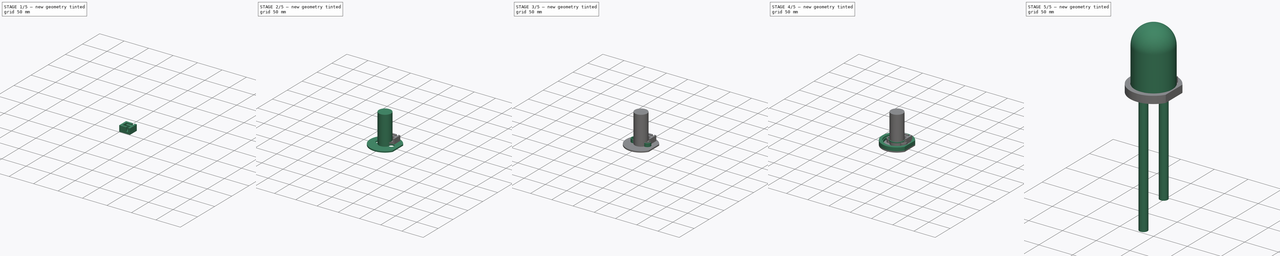
[diagram: build sequence overview — one tinted view per stage of 5, left to right]
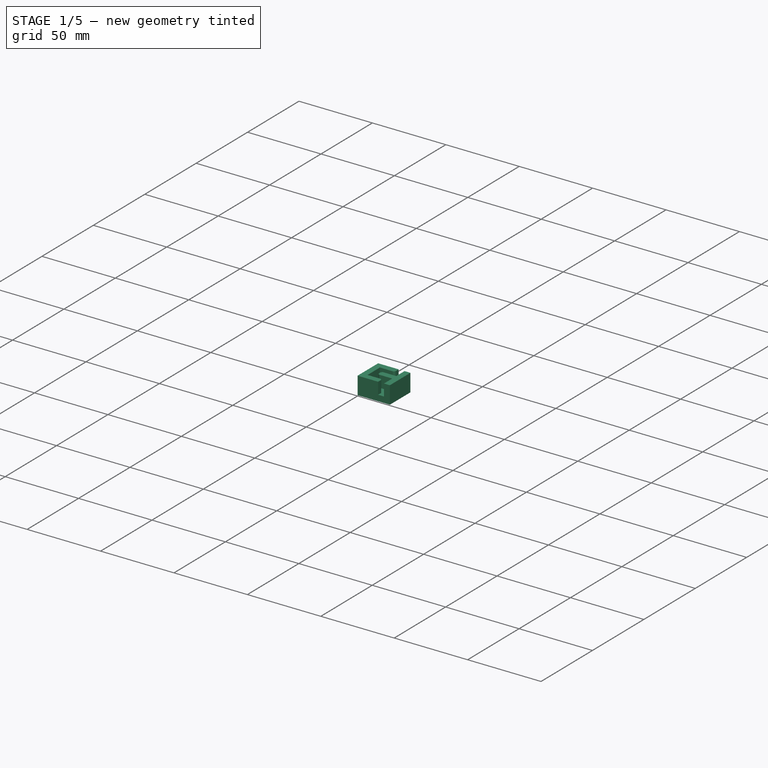
[diagram: stage 1 of 5 — iso view after this stage's code; geometry added in this stage tinted green]
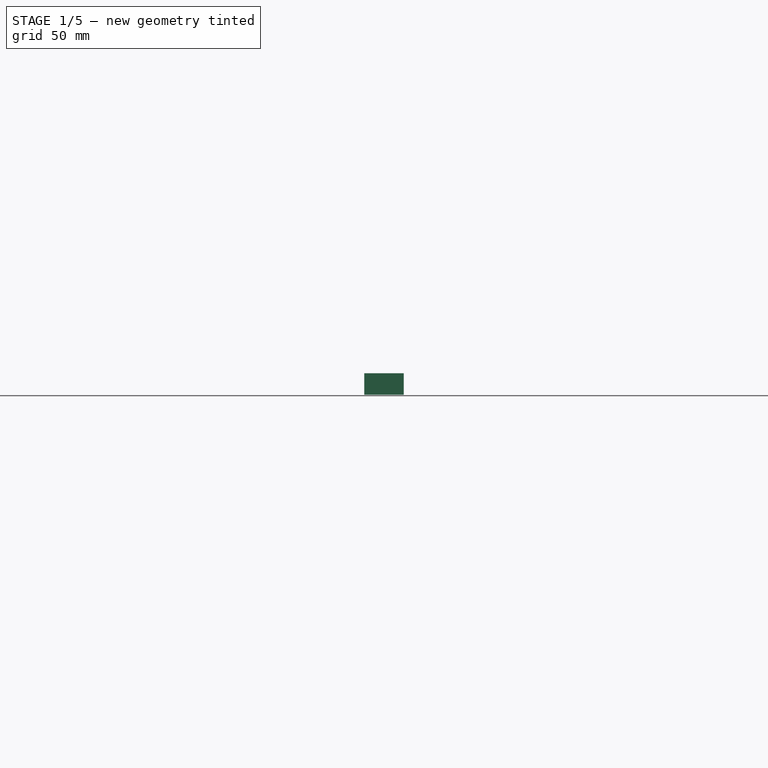
[diagram: stage 1 of 5 — front view after this stage's code; geometry added in this stage tinted green]
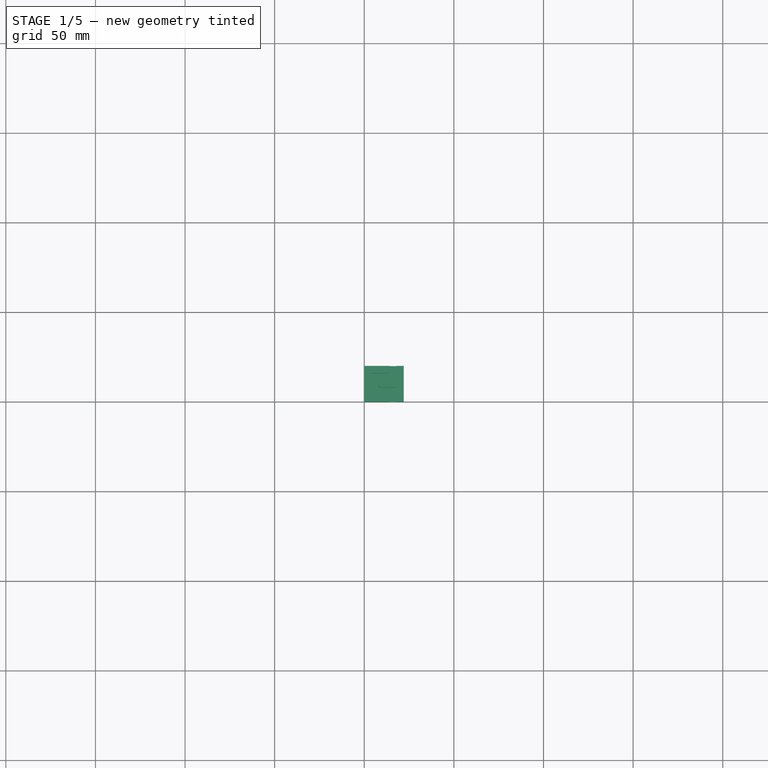
[diagram: stage 1 of 5 — top view after this stage's code; geometry added in this stage tinted green]
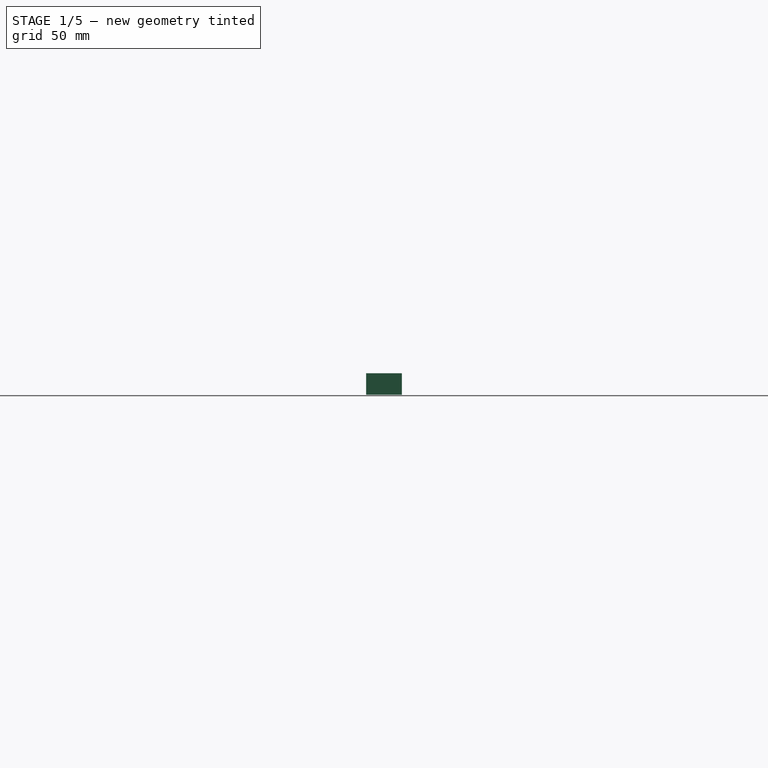
[diagram: stage 1 of 5 — right view after this stage's code; geometry added in this stage tinted green]
FCSTD DOCUMENT  (FreeCAD 0.21R33771 (Git))
Label: Komplett
License: All rights reserved
LicenseURL: http://en.wikipedia.org/wiki/All_rights_reserved
objects: Sketcher::SketchObject×13, PartDesign::Pad×8, PartDesign::Body×4, PartDesign::Revolution×3, Part::FeaturePython×2, PartDesign::Pocket×2
note: 45 computed .brp shape members not serialized (recipe doc carries the construction recipe); baked Part::Feature solids carry a one-line shape summary decoded from their .brp

FEATURE [PartDesign::Body] Body018  label="LED Halter"
  Group = -> [Sketch018,Revolution003,Sketch019,Pad015,Sketch020,Pocket,Sketch021,Pocket001,Sketch022,Pad016,Sketch023,Pad017,Sketch024,Pad018,Sketch025,Pad019]
  Origin = -> Origin019
  Tip = -> Pad019
FEATURE [Sketcher::SketchObject] Sketch026
  FullyConstrained = true
  MapMode = 5
  Support = -> [XY_Plane020]
  sketch-geometry (10):
    g0: LineSegment StartX=0 StartY=0 StartZ=0 EndX=14 EndY=0 EndZ=0
    g1: LineSegment StartX=14 StartY=0 StartZ=0 EndX=14 EndY=2.5 EndZ=0
    g2: LineSegment StartX=12.5 StartY=4 StartZ=0 EndX=4 EndY=4 EndZ=0
    g3: LineSegment StartX=4 StartY=4 StartZ=0 EndX=4 EndY=16 EndZ=0
    g4: LineSegment StartX=4 StartY=16 StartZ=0 EndX=12.5 EndY=16 EndZ=0
    g5: LineSegment StartX=14 StartY=17.5 StartZ=0 EndX=14 EndY=20 EndZ=0
    g6: LineSegment StartX=14 StartY=20 StartZ=0 EndX=0 EndY=20 EndZ=0
    g7: LineSegment StartX=0 StartY=20 StartZ=0 EndX=0 EndY=0 EndZ=0
    g8: ArcOfCircle CenterX=12.5 CenterY=2.5 CenterZ=0 NormalX=0 NormalY=0 NormalZ=1 AngleXU=0 Radius=1.5 StartAngle=0 EndAngle=1.5708
    g9: ArcOfCircle CenterX=12.5 CenterY=17.5 CenterZ=0 NormalX=0 NormalY=0 NormalZ=1 AngleXU=0 Radius=1.5 StartAngle=4.71239 EndAngle=6.28319
  constraints (27):
    c: Coincident(g-1,g0)
    c: PointOnObject(g0,g-1)
    c: Coincident(g0,g1)
    c: Vertical(g1)
    c: Horizontal(g2)
    c: Coincident(g2,g3)
    c: Vertical(g3)
    c: Coincident(g3,g4)
    c: Horizontal(g4)
    c: Vertical(g5)
    c: Coincident(g5,g6)
    c: PointOnObject(g6,g-2)
    c: Horizontal(g6)
    c: Coincident(g6,g7)
    c: Coincident(g7,g0)
    c: DistanceX(g2) = 4
    c: DistanceY(g3,g3) = 12
    c: Tangent(g1,g8) = -1.5708
    c: Tangent(g2,g8) = -1.5708
    c: Tangent(g4,g9) = -1.5708
    c: Tangent(g5,g9) = -1.5708
    c: DistanceY(g4,g5) = 4
    c: DistanceY(g0,g2) = 4
    c: Vertical(g1,g5)
    c: DistanceX(g6,g6) = 14
    c: Vertical(g4,g2)
    c: Radius(g9) = 1.5
FEATURE [PartDesign::Pad] Pad
  Direction = (0,0,1)
  Length = 8
  Length2 = 10
  Profile = -> Sketch026
  ReferenceAxis = -> Sketch026 [N_Axis]
  Type = 0
FEATURE [Sketcher::SketchObject] Sketch027
  FullyConstrained = true
  MapMode = 5
  Support = -> [XY_Plane020]
  sketch-geometry (10):
    g0: LineSegment StartX=18 StartY=0 StartZ=0 EndX=18 EndY=8 EndZ=0
    g1: LineSegment StartX=18 StartY=8 StartZ=0 EndX=9.5 EndY=8 EndZ=0
    g2: LineSegment StartX=8 StartY=9.5 StartZ=0 EndX=8 EndY=10.5 EndZ=0
    g3: LineSegment StartX=9.5 StartY=12 StartZ=0 EndX=18 EndY=12 EndZ=0
    g4: LineSegment StartX=18 StartY=12 StartZ=0 EndX=18 EndY=20 EndZ=0
    g5: LineSegment StartX=18 StartY=20 StartZ=0 EndX=22 EndY=20 EndZ=0
    g6: LineSegment StartX=22 StartY=20 StartZ=0 EndX=22 EndY=0 EndZ=0
    g7: LineSegment StartX=22 StartY=0 StartZ=0 EndX=18 EndY=0 EndZ=0
    g8: ArcOfCircle CenterX=9.5 CenterY=9.5 CenterZ=0 NormalX=0 NormalY=0 NormalZ=1 AngleXU=0 Radius=1.5 StartAngle=3.14159 EndAngle=4.71239
    g9: ArcOfCircle CenterX=9.5 CenterY=10.5 CenterZ=0 NormalX=0 NormalY=0 NormalZ=1 AngleXU=0 Radius=1.5 StartAngle=1.5708 EndAngle=3.14159
  constraints (28):
    c: Vertical(g0)
    c: Coincident(g0,g1)
    c: Horizontal(g1)
    c: Vertical(g2)
    c: Coincident(g3,g4)
    c: Vertical(g4)
    c: Coincident(g4,g5)
    c: Horizontal(g5)
    c: Coincident(g5,g6)
    c: PointOnObject(g6,g-1)
    c: Vertical(g6)
    c: Coincident(g6,g7)
    c: Coincident(g7,g0)
    c: Horizontal(g7)
    c: Horizontal(g3)
    c: DistanceY(g0,g0) = 8
    c: DistanceY(g4,g4) = 8
    c: DistanceY(g0,g3) = 4
    c: DistanceX(g7,g7) = 4
    c: Vertical(g0,g3)
    c: DistanceX(g0) = 18
    c: Tangent(g1,g8) = 1.5708
    c: Tangent(g2,g8) = 1.5708
    c: Tangent(g2,g9) = 1.5708
    c: Tangent(g3,g9) = 1.5708
    c: Vertical(g1,g3)
    c: DistanceX(g2,g0) = 10
    c: Radius(g9) = 1.5
FEATURE [Sketcher::SketchObject] Sketch028
  FullyConstrained = true
  MapMode = 5
  Support = -> [XY_Plane020]
  sketch-geometry (4):
    g0: LineSegment StartX=0 StartY=0 StartZ=0 EndX=22 EndY=0 EndZ=0
    g1: LineSegment StartX=22 StartY=0 StartZ=0 EndX=22 EndY=20 EndZ=0
    g2: LineSegment StartX=22 StartY=20 StartZ=0 EndX=0 EndY=20 EndZ=0
    g3: LineSegment StartX=0 StartY=20 StartZ=0 EndX=0 EndY=0 EndZ=0
  constraints (11):
    c: Coincident(g0,g1)
    c: Coincident(g1,g2)
    c: Coincident(g2,g3)
    c: Coincident(g3,g0)
    c: Horizontal(g0)
    c: Horizontal(g2)
    c: Vertical(g1)
    c: Vertical(g3)
    c: Coincident(g0,g-1)
    c: DistanceX(g1) = 22
    c: DistanceY(g1) = 20
FEATURE [PartDesign::Pad] Pad020
  BaseFeature = -> Pad
  Direction = (0,0,-1)
  Length = 4
  Length2 = 10
  Profile = -> Sketch028
  ReferenceAxis = -> Sketch028 [N_Axis]
  Type = 0
  UseCustomVector = true
FEATURE [PartDesign::Pad] Pad021
  BaseFeature = -> Pad020
  Direction = (0,0,1)
  Length = 8
  Length2 = 10
  Profile = -> Sketch027
  ReferenceAxis = -> Sketch027 [N_Axis]
  Type = 0
FEATURE [PartDesign::Body] Body019  label="Zugendlastung"
  Group = -> [Sketch026,Pad,Sketch027,Sketch028,Pad020,Pad021]
  Origin = -> Origin020
  Tip = -> Pad021
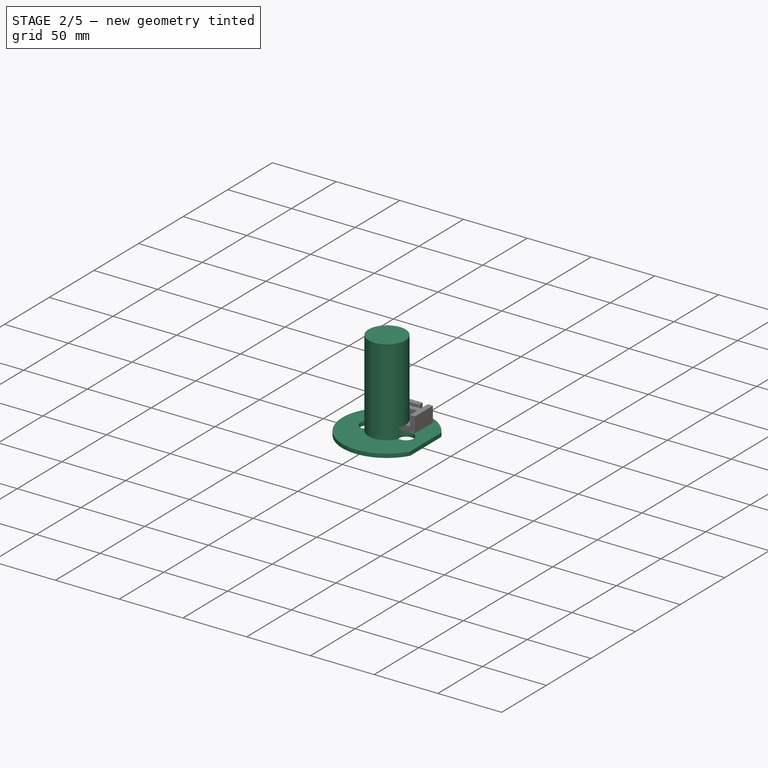
[diagram: stage 2 of 5 — iso view after this stage's code; geometry added in this stage tinted green]
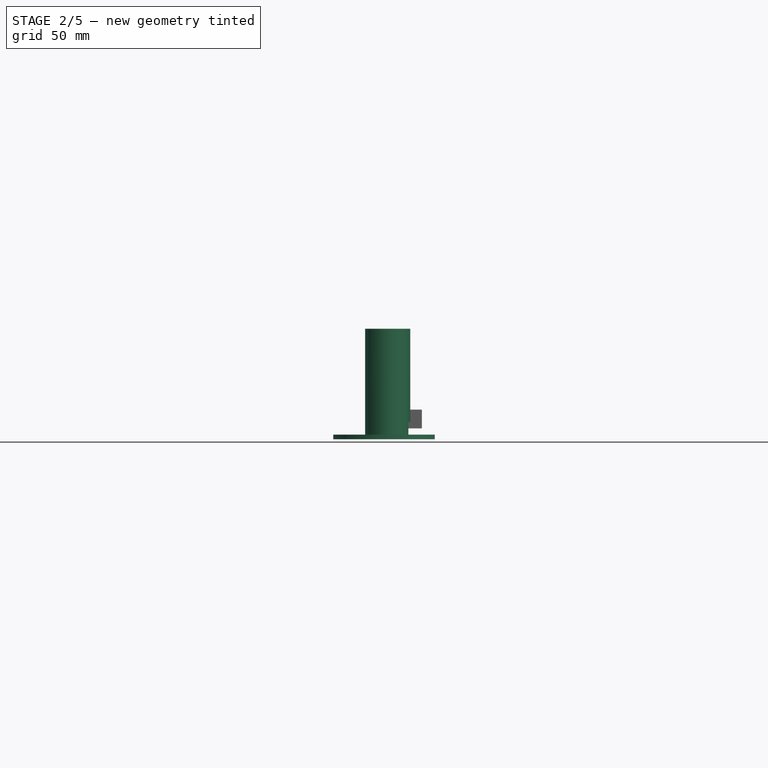
[diagram: stage 2 of 5 — front view after this stage's code; geometry added in this stage tinted green]
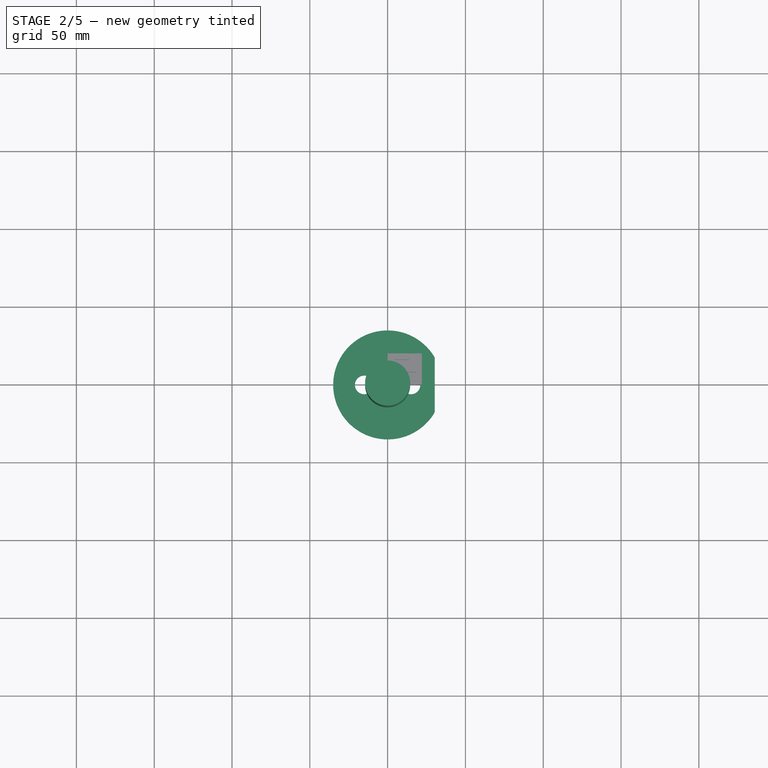
[diagram: stage 2 of 5 — top view after this stage's code; geometry added in this stage tinted green]
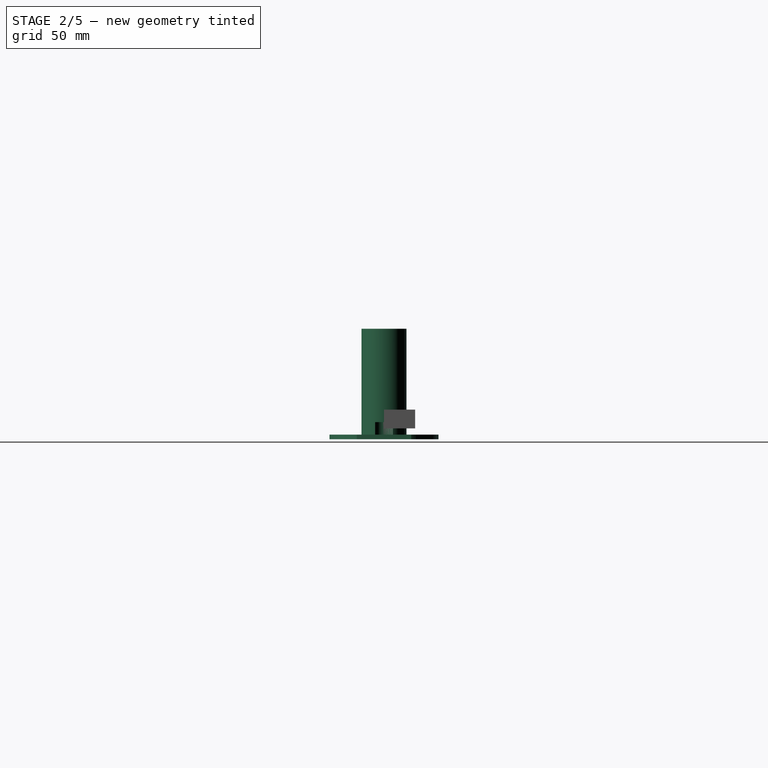
[diagram: stage 2 of 5 — right view after this stage's code; geometry added in this stage tinted green]
FEATURE [PartDesign::Body] Body017  label="Anschluss Versteifung"
  Group = -> [Sketch017,Revolution002]
  Origin = -> Origin018
  Placement = pos=(-15,-2.3e-14,-185) rot=(1,0,0;3.14159rad)
  Tip = -> Revolution002
FEATURE [Sketcher::SketchObject] Sketch018
  FullyConstrained = true
  MapMode = 5
  Placement = pos=(0,0,0) rot=(1,0,0;1.5708rad)
  Support = -> [XZ_Plane019]
  sketch-geometry (4):
    g0: LineSegment StartX=0 StartY=60 StartZ=0 EndX=0 EndY=-11 EndZ=0
    g1: LineSegment StartX=0 StartY=-11 StartZ=0 EndX=14.5 EndY=-11 EndZ=0
    g2: LineSegment StartX=14.5 StartY=-11 StartZ=0 EndX=14.5 EndY=60 EndZ=0
    g3: LineSegment StartX=14.5 StartY=60 StartZ=0 EndX=0 EndY=60 EndZ=0
  constraints (12):
    c: PointOnObject(g0,g-2)
    c: Vertical(g0)
    c: Coincident(g0,g1)
    c: Coincident(g1,g2)
    c: Vertical(g2)
    c: Coincident(g2,g3)
    c: Coincident(g3,g0)
    c: Horizontal(g3)
    c: Distance(g3) = 14.5
    c: DistanceY(g2) = 60
    c: DistanceY(g1) = -11
    c: Horizontal(g1)
FEATURE [PartDesign::Revolution] Revolution003
  Angle = 360
  Axis = (0,-2e-16,1)
  Base = (0,0,0)
  Placement = pos=(0,0,0) rot=(1,0,0;1.5708rad)
  Profile = -> Sketch018
  ReferenceAxis = -> Sketch018 [V_Axis]
  Reversed = true
FEATURE [Sketcher::SketchObject] Sketch019
  AttachmentOffset = pos=(0,0,-11) rot=(0,0,1;0rad)
  FullyConstrained = true
  MapMode = 5
  Placement = pos=(0,0,-11) rot=(0,0,1;0rad)
  Support = -> [XY_Plane019]
  sketch-geometry (4):
    g0: ArcOfCircle CenterX=0 CenterY=0 CenterZ=0 NormalX=0 NormalY=0 NormalZ=1 AngleXU=0 Radius=35 StartAngle=0.523599 EndAngle=5.75959
    g1: Circle CenterX=15 CenterY=0 CenterZ=0 NormalX=0 NormalY=0 NormalZ=1 AngleXU=0 Radius=6
    g2: Circle CenterX=-15 CenterY=0 CenterZ=0 NormalX=0 NormalY=0 NormalZ=1 AngleXU=0 Radius=6
    g3: LineSegment StartX=30.3109 StartY=17.5 StartZ=0 EndX=30.3109 EndY=-17.5 EndZ=0
  constraints (12):
    c: Coincident(g0,g-1)
    c: PointOnObject(g1,g-1)
    c: PointOnObject(g2,g-1)
    c: Coincident(g3,g0)
    c: Coincident(g3,g0)
    c: Vertical(g3)
    c: Diameter(g0) = 70
    c: Distance(g3) = 35
    c: Equal(g1,g2)
    c: Diameter(g1) = 12
    c: DistanceX(g1) = 15
    c: DistanceX(g2) = -15
FEATURE [PartDesign::Pad] Pad015
  BaseFeature = -> Revolution003
  Direction = (0,0,1)
  Length = 3
  Length2 = 10
  Placement = pos=(0,0,0) rot=(1,0,0;1.5708rad)
  Profile = -> Sketch019
  ReferenceAxis = -> Sketch019 [N_Axis]
  Type = 0
FEATURE [Sketcher::SketchObject] Sketch020
  AttachmentOffset = pos=(0,0,-11) rot=(0,0,1;0rad)
  FullyConstrained = true
  MapMode = 5
  Placement = pos=(0,0,-11) rot=(0,0,1;0rad)
  Support = -> [XY_Plane019]
  sketch-geometry (1):
    g0: Circle CenterX=15 CenterY=0 CenterZ=0 NormalX=0 NormalY=0 NormalZ=1 AngleXU=0 Radius=6
  constraints (3):
    c: PointOnObject(g0,g-1)
    c: Diameter(g0) = 12
    c: DistanceX(g0) = 15
FEATURE [PartDesign::Pocket] Pocket
  BaseFeature = -> Pad015
  Direction = (0,0,1)
  Length = 11
  Length2 = 5
  Placement = pos=(0,0,0) rot=(1,0,0;1.5708rad)
  Profile = -> Sketch020
  ReferenceAxis = -> Sketch020 [N_Axis]
  Type = 0
  UseCustomVector = true
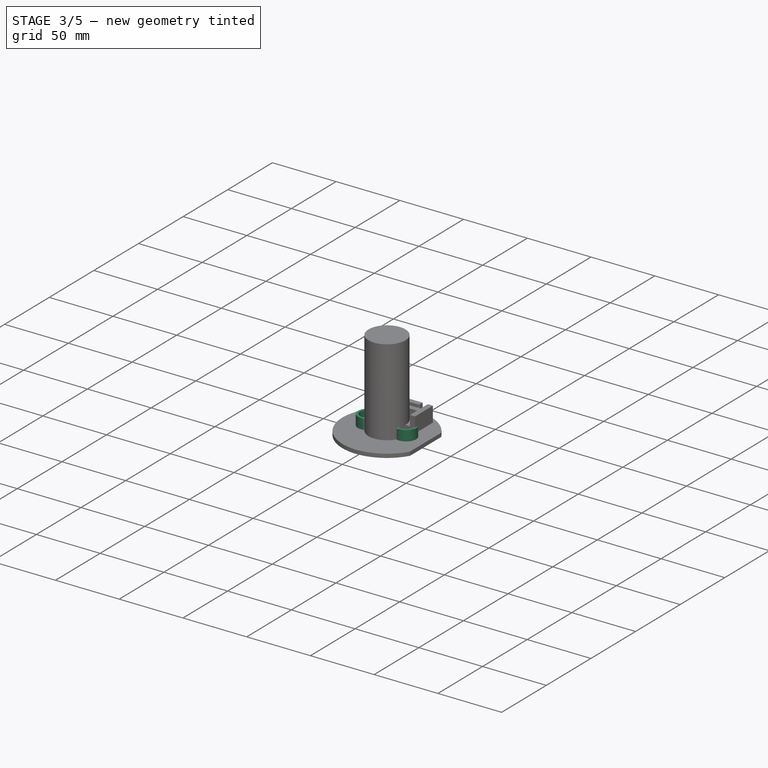
[diagram: stage 3 of 5 — iso view after this stage's code; geometry added in this stage tinted green]
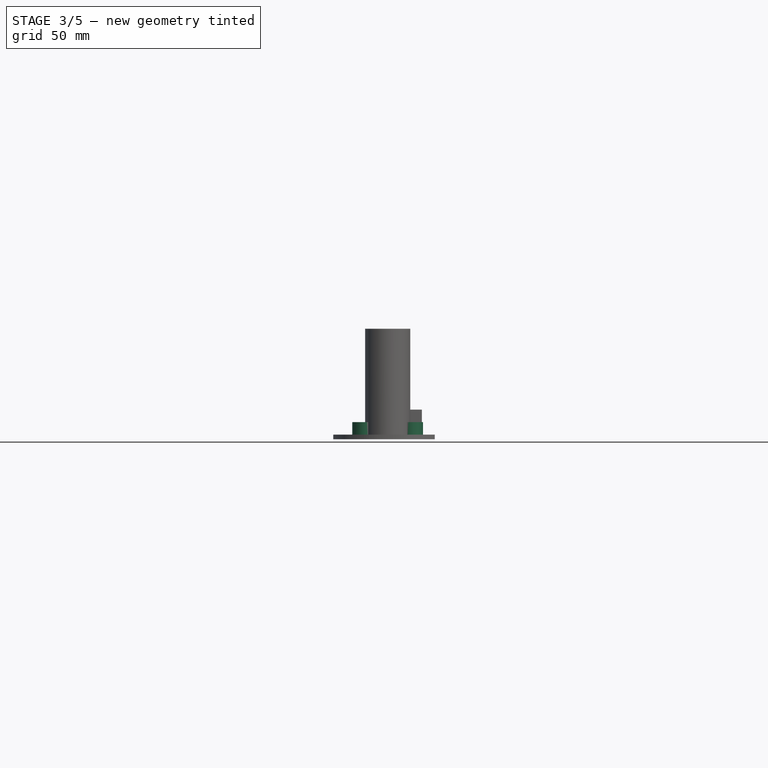
[diagram: stage 3 of 5 — front view after this stage's code; geometry added in this stage tinted green]
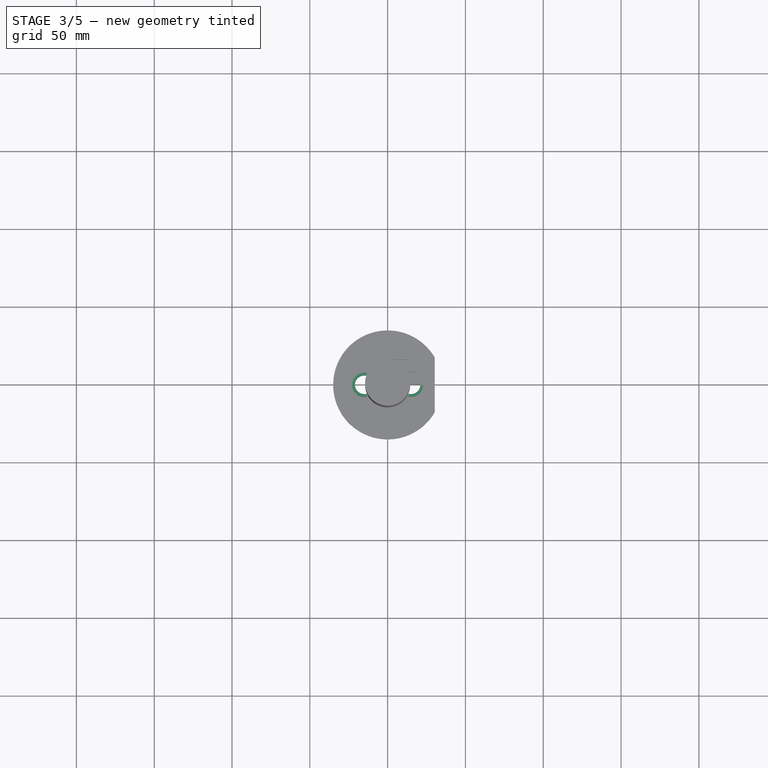
[diagram: stage 3 of 5 — top view after this stage's code; geometry added in this stage tinted green]
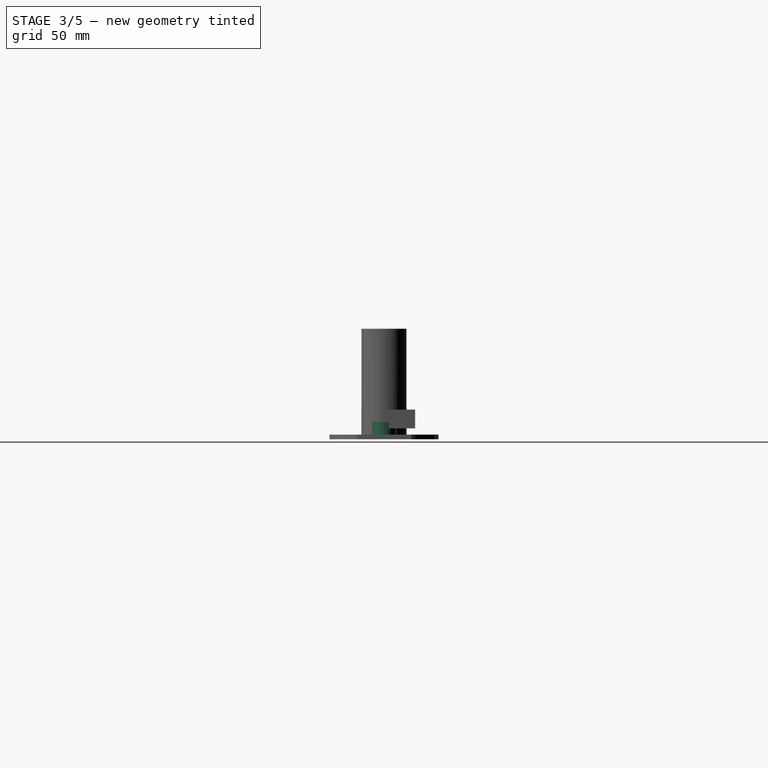
[diagram: stage 3 of 5 — right view after this stage's code; geometry added in this stage tinted green]
FEATURE [Sketcher::SketchObject] Sketch021
  AttachmentOffset = pos=(0,0,-11) rot=(0,0,1;0rad)
  FullyConstrained = true
  MapMode = 5
  Placement = pos=(0,0,-11) rot=(0,0,1;0rad)
  Support = -> [XY_Plane019]
  sketch-geometry (1):
    g0: Circle CenterX=-15 CenterY=0 CenterZ=0 NormalX=0 NormalY=0 NormalZ=1 AngleXU=0 Radius=6
  constraints (3):
    c: PointOnObject(g0,g-1)
    c: Diameter(g0) = 12
    c: DistanceX(g0) = -15
FEATURE [PartDesign::Pocket] Pocket001
  BaseFeature = -> Pocket
  Direction = (0,0,1)
  Length = 11
  Length2 = 5
  Placement = pos=(0,0,0) rot=(1,0,0;1.5708rad)
  Profile = -> Sketch021
  ReferenceAxis = -> Sketch021 [N_Axis]
  Type = 0
  UseCustomVector = true
FEATURE [Sketcher::SketchObject] Sketch022
  AttachmentOffset = pos=(0,0,-8) rot=(0,0,1;0rad)
  FullyConstrained = true
  MapMode = 5
  Placement = pos=(0,0,-8) rot=(0,0,1;0rad)
  Support = -> [XY_Plane019]
  sketch-geometry (2):
    g0: Circle CenterX=15 CenterY=0 CenterZ=0 NormalX=0 NormalY=0 NormalZ=1 AngleXU=0 Radius=6
    g1: Circle CenterX=15 CenterY=0 CenterZ=0 NormalX=0 NormalY=0 NormalZ=1 AngleXU=0 Radius=7.75
  constraints (5):
    c: PointOnObject(g0,g-1)
    c: Diameter(g0) = 12
    c: DistanceX(g0) = 15
    c: Coincident(g1,g0)
    c: Diameter(g1) = 15.5
FEATURE [PartDesign::Pad] Pad016
  BaseFeature = -> Pocket001
  Direction = (0,0,1)
  Length = 8
  Length2 = 10
  Placement = pos=(0,0,0) rot=(1,0,0;1.5708rad)
  Profile = -> Sketch022
  ReferenceAxis = -> Sketch022 [N_Axis]
  Type = 0
FEATURE [Sketcher::SketchObject] Sketch023
  AttachmentOffset = pos=(0,0,-8) rot=(0,0,1;0rad)
  FullyConstrained = true
  MapMode = 5
  Placement = pos=(0,0,-8) rot=(0,0,1;0rad)
  Support = -> [XY_Plane019]
  sketch-geometry (2):
    g0: Circle CenterX=-15 CenterY=0 CenterZ=0 NormalX=0 NormalY=0 NormalZ=1 AngleXU=0 Radius=6
    g1: Circle CenterX=-15 CenterY=0 CenterZ=0 NormalX=0 NormalY=0 NormalZ=1 AngleXU=0 Radius=7.75
  constraints (5):
    c: PointOnObject(g0,g-1)
    c: Diameter(g0) = 12
    c: DistanceX(g0) = -15
    c: Coincident(g1,g0)
    c: Diameter(g1) = 15.5
FEATURE [PartDesign::Pad] Pad017
  BaseFeature = -> Pad016
  Direction = (0,0,1)
  Length = 8
  Length2 = 10
  Placement = pos=(0,0,0) rot=(1,0,0;1.5708rad)
  Profile = -> Sketch023
  ReferenceAxis = -> Sketch023 [N_Axis]
  Type = 0
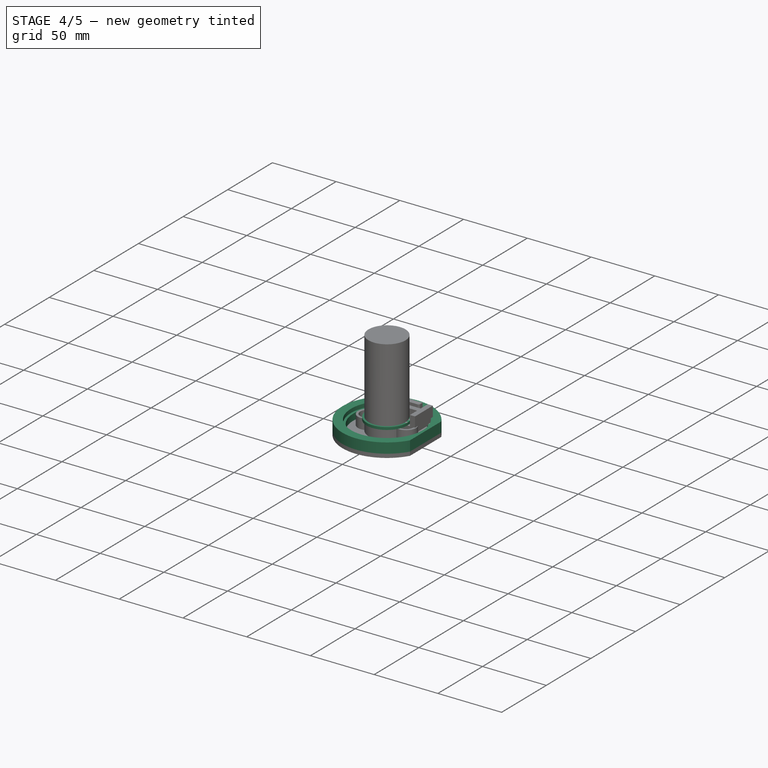
[diagram: stage 4 of 5 — iso view after this stage's code; geometry added in this stage tinted green]
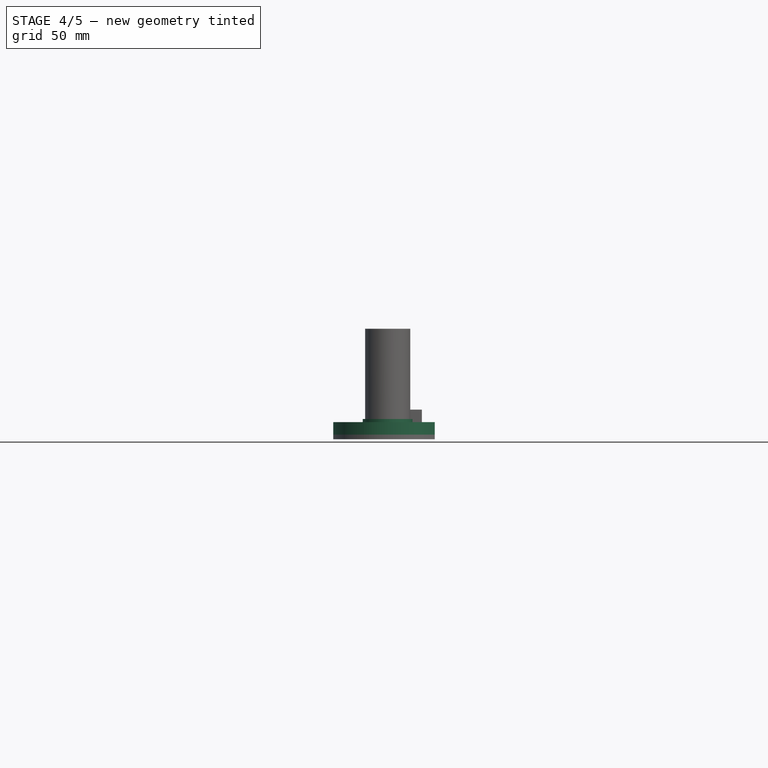
[diagram: stage 4 of 5 — front view after this stage's code; geometry added in this stage tinted green]
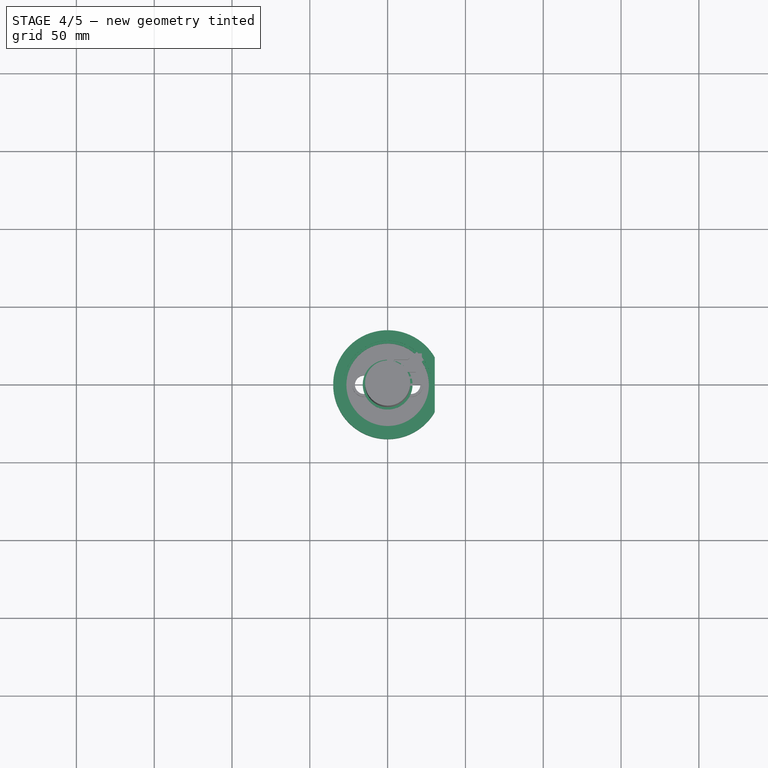
[diagram: stage 4 of 5 — top view after this stage's code; geometry added in this stage tinted green]
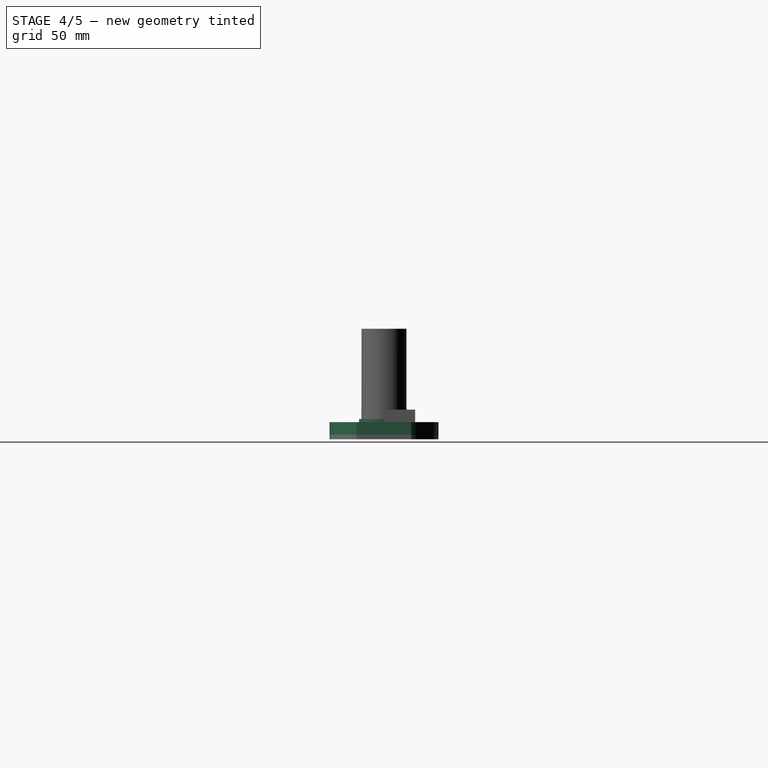
[diagram: stage 4 of 5 — right view after this stage's code; geometry added in this stage tinted green]
FEATURE [Sketcher::SketchObject] Sketch017
  FullyConstrained = true
  MapMode = 5
  Placement = pos=(0,0,0) rot=(1,0,0;1.5708rad)
  Support = -> [XZ_Plane018]
  sketch-geometry (6):
    g0: LineSegment StartX=6 StartY=0 StartZ=0 EndX=16 EndY=0 EndZ=0
    g1: LineSegment StartX=16 StartY=0 StartZ=0 EndX=16 EndY=2 EndZ=0
    g2: LineSegment StartX=16 StartY=2 StartZ=0 EndX=8 EndY=2 EndZ=0
    g3: LineSegment StartX=8 StartY=2 StartZ=0 EndX=8 EndY=15 EndZ=0
    g4: LineSegment StartX=8 StartY=15 StartZ=0 EndX=6 EndY=15 EndZ=0
    g5: LineSegment StartX=6 StartY=15 StartZ=0 EndX=6 EndY=0 EndZ=0
  constraints (18):
    c: PointOnObject(g0,g-1)
    c: PointOnObject(g0,g-1)
    c: Coincident(g0,g1)
    c: Coincident(g1,g2)
    c: Horizontal(g2)
    c: Coincident(g2,g3)
    c: Vertical(g3)
    c: Coincident(g3,g4)
    c: Horizontal(g4)
    c: Coincident(g4,g5)
    c: Coincident(g5,g0)
    c: Vertical(g5)
    c: Vertical(g1)
    c: Equal(g1,g4)
    c: Distance(g1) = 2
    c: DistanceX(g0) = 6
    c: Distance(g5) = 15
    c: Distance(g0) = 10
FEATURE [PartDesign::Revolution] Revolution002
  Angle = 360
  Axis = (0,-2e-16,1)
  Base = (0,0,0)
  Placement = pos=(0,0,0) rot=(1,0,0;1.5708rad)
  Profile = -> Sketch017
  ReferenceAxis = -> Sketch017 [V_Axis]
  Reversed = true
FEATURE [Sketcher::SketchObject] Sketch024
  AttachmentOffset = pos=(0,0,-8) rot=(0,0,1;0rad)
  FullyConstrained = true
  MapMode = 5
  Placement = pos=(0,0,-8) rot=(0,0,1;0rad)
  Support = -> [XY_Plane019]
  sketch-geometry (3):
    g0: ArcOfCircle CenterX=0 CenterY=0 CenterZ=0 NormalX=0 NormalY=0 NormalZ=1 AngleXU=0 Radius=35 StartAngle=0.523599 EndAngle=5.75959
    g1: LineSegment StartX=30.3109 StartY=17.5 StartZ=0 EndX=30.3109 EndY=-17.5 EndZ=0
    g2: Circle CenterX=0 CenterY=0 CenterZ=0 NormalX=0 NormalY=0 NormalZ=1 AngleXU=0 Radius=28.25
  constraints (8):
    c: Coincident(g0,g-1)
    c: Coincident(g1,g0)
    c: Coincident(g1,g0)
    c: Vertical(g1)
    c: Distance(g1) = 35
    c: Diameter(g0) = 70
    c: Coincident(g2,g0)
    c: Diameter(g2) = 56.5
FEATURE [PartDesign::Pad] Pad018
  BaseFeature = -> Pad017
  Direction = (0,0,1)
  Length = 8
  Length2 = 10
  Placement = pos=(0,0,0) rot=(1,0,0;1.5708rad)
  Profile = -> Sketch024
  ReferenceAxis = -> Sketch024 [N_Axis]
  Type = 0
FEATURE [Sketcher::SketchObject] Sketch025
  AttachmentOffset = pos=(0,0,-8) rot=(0,0,1;0rad)
  FullyConstrained = true
  MapMode = 5
  Placement = pos=(0,0,-8) rot=(0,0,1;0rad)
  Support = -> [XY_Plane019]
  sketch-geometry (2):
    g0: Circle CenterX=0 CenterY=0 CenterZ=0 NormalX=0 NormalY=0 NormalZ=1 AngleXU=0 Radius=28.25
    g1: Circle CenterX=0 CenterY=0 CenterZ=0 NormalX=0 NormalY=0 NormalZ=1 AngleXU=0 Radius=26.5
  constraints (4):
    c: Coincident(g0,g-1)
    c: Diameter(g0) = 56.5
    c: Coincident(g1,g0)
    c: Diameter(g1) = 53
FEATURE [PartDesign::Pad] Pad019
  BaseFeature = -> Pad018
  Direction = (0,0,1)
  Length = 5
  Length2 = 10
  Placement = pos=(0,0,0) rot=(1,0,0;1.5708rad)
  Profile = -> Sketch025
  ReferenceAxis = -> Sketch025 [N_Axis]
  Type = 0
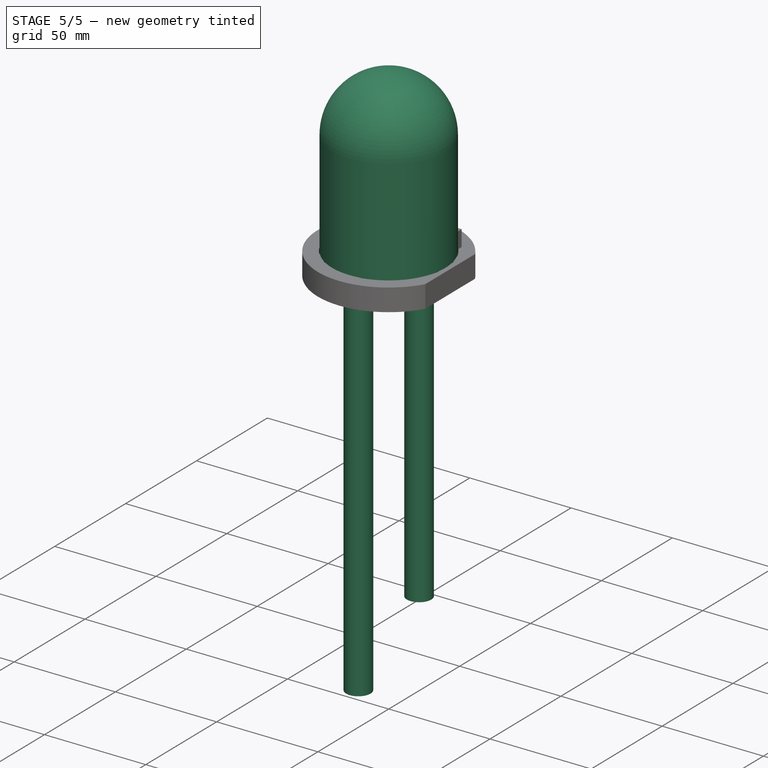
[diagram: stage 5 of 5 — iso view after this stage's code; geometry added in this stage tinted green]
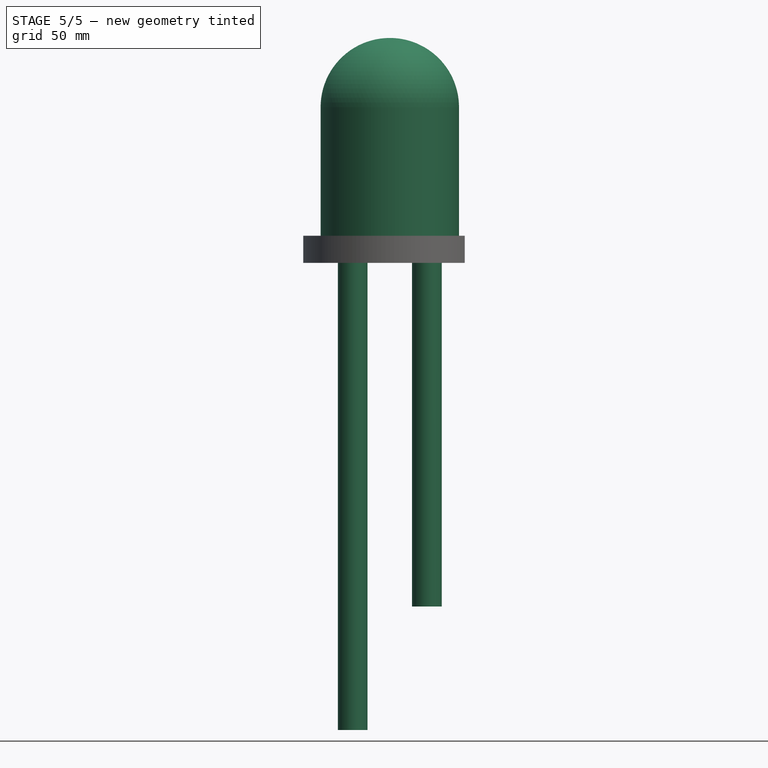
[diagram: stage 5 of 5 — front view after this stage's code; geometry added in this stage tinted green]
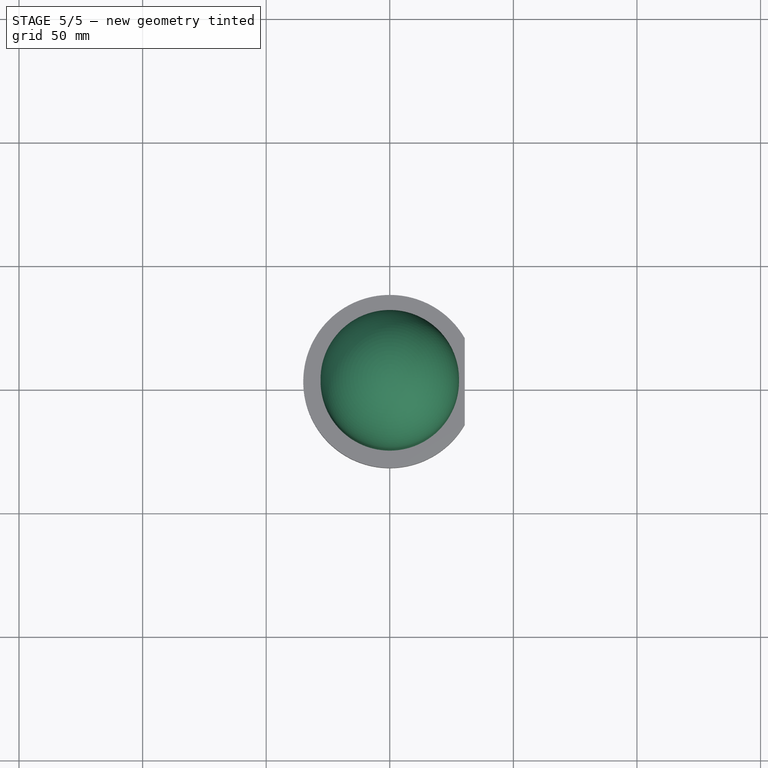
[diagram: stage 5 of 5 — top view after this stage's code; geometry added in this stage tinted green]
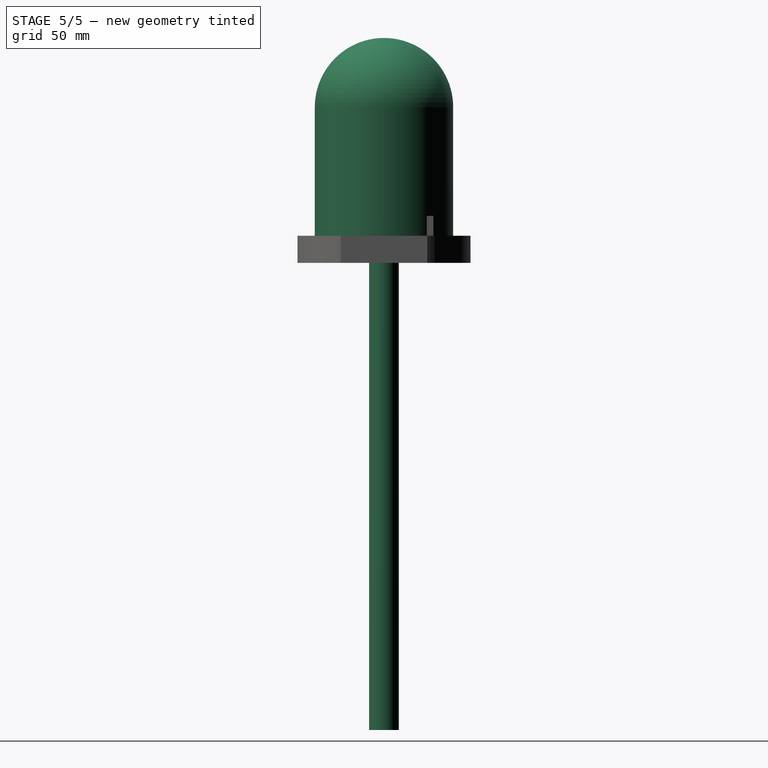
[diagram: stage 5 of 5 — right view after this stage's code; geometry added in this stage tinted green]
FEATURE [Sketcher::SketchObject] Sketch
  FullyConstrained = true
  MapMode = 5
  Placement = pos=(0,0,0) rot=(1,0,0;1.5708rad)
  Support = -> [XZ_Plane]
  sketch-geometry (6):
    g0: LineSegment StartX=28 StartY=0 StartZ=0 EndX=28 EndY=52 EndZ=0
    g1: LineSegment StartX=1.6e-15 StartY=80 StartZ=0 EndX=1.6e-15 EndY=78 EndZ=0
    g2: LineSegment StartX=26 StartY=0 StartZ=0 EndX=26 EndY=52 EndZ=0
    g3: ArcOfCircle CenterX=0 CenterY=52 CenterZ=0 NormalX=0 NormalY=0 NormalZ=1 AngleXU=0 Radius=26 StartAngle=2e-16 EndAngle=1.5708
    g4: ArcOfCircle CenterX=0 CenterY=52 CenterZ=0 NormalX=0 NormalY=0 NormalZ=1 AngleXU=0 Radius=28 StartAngle=1e-16 EndAngle=1.5708
    g5: LineSegment StartX=26 StartY=0 StartZ=0 EndX=28 EndY=0 EndZ=0
  constraints (19):
    c: PointOnObject(g0,g-1)
    c: Vertical(g0)
    c: PointOnObject(g1,g-2)
    c: Vertical(g1)
    c: Vertical(g2)
    c: PointOnObject(g3,g-2)
    c: Coincident(g3,g2)
    c: Coincident(g3,g1)
    c: Coincident(g4,g3)
    c: Coincident(g4,g0)
    c: Coincident(g4,g1)
    c: PointOnObject(g2,g-1)
    c: Coincident(g5,g2)
    c: Coincident(g5,g0)
    c: Distance(g5) = 2
    c: DistanceY(g2,g0) = 0
    c: DistanceY(g1) = 80
    c: Angle(g3) = 1.5708
    c: DistanceX(g0) = 28
FEATURE [PartDesign::Revolution] Revolution
  Angle = 360
  Axis = (0,-2e-16,1)
  Base = (0,0,0)
  Placement = pos=(0,0,0) rot=(1,0,0;1.5708rad)
  Profile = -> Sketch
  ReferenceAxis = -> Sketch [V_Axis]
  Reversed = true
FEATURE [PartDesign::Body] Body  label="Led Difusor"
  Group = -> [Sketch,Revolution]
  Origin = -> Origin
  Placement = pos=(0,0,-3) rot=(0,0,1;0rad)
  Tip = -> Revolution
FEATURE [Part::FeaturePython] Tube  label="Anschluss 1"  # WARN: FeaturePython — macro-defined, semantics opaque (R4)
  AttacherType = Attacher::AttachEngine3D
  Height = 150
  InnerRadius = 5
  OuterRadius = 6
  Placement = pos=(15,0,-150) rot=(0,0,1;0rad)
FEATURE [Part::FeaturePython] Tube001  label="Anschluss 2"  # WARN: FeaturePython — macro-defined, semantics opaque (R4)
  AttacherType = Attacher::AttachEngine3D
  Height = 200
  InnerRadius = 5
  OuterRadius = 6
  Placement = pos=(-15,0,-200) rot=(0,0,1;0rad)
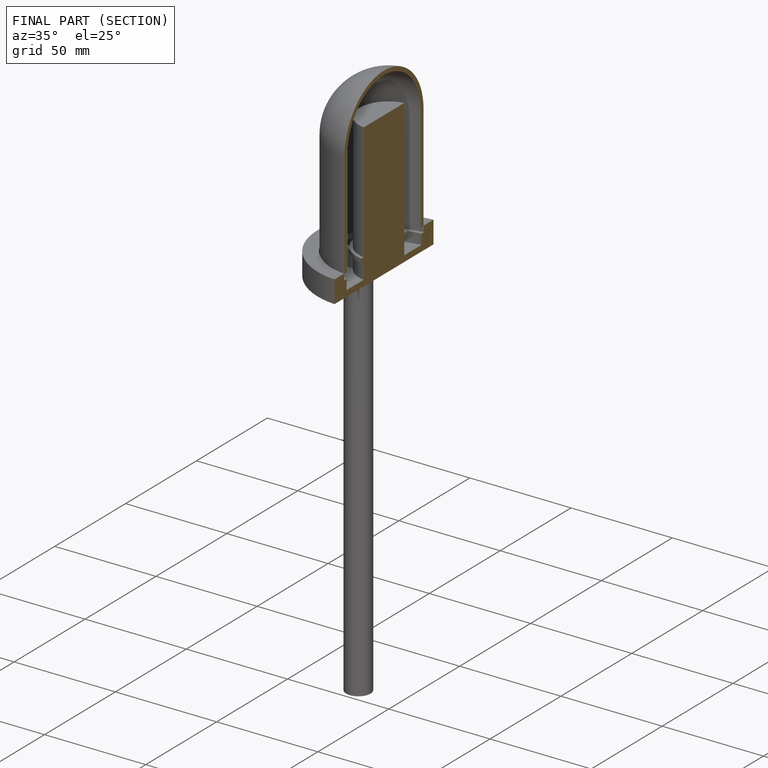
[diagram: finished part — half-section view (interior)]
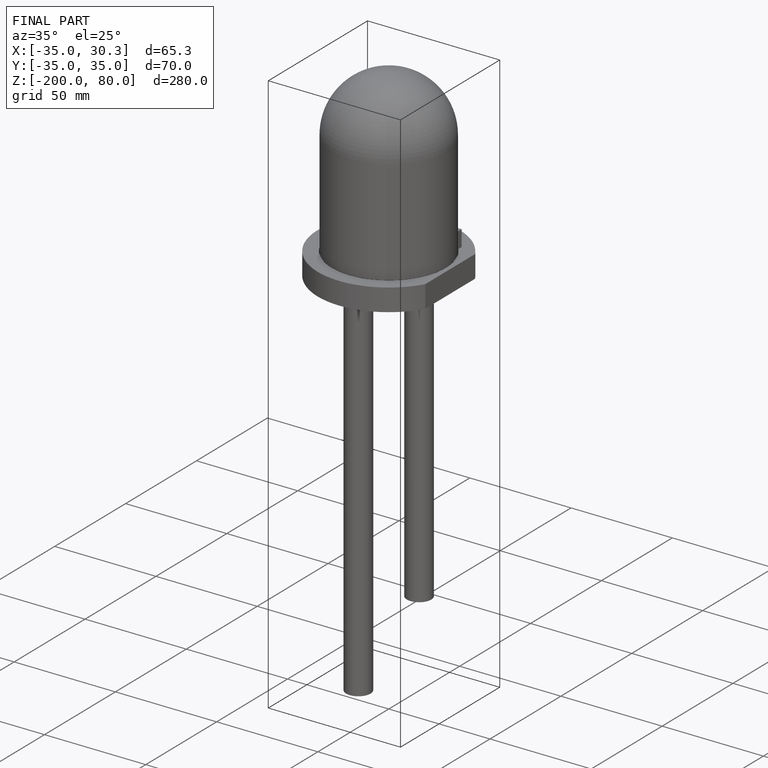
[diagram: finished part — iso view with bounding-box wireframe]
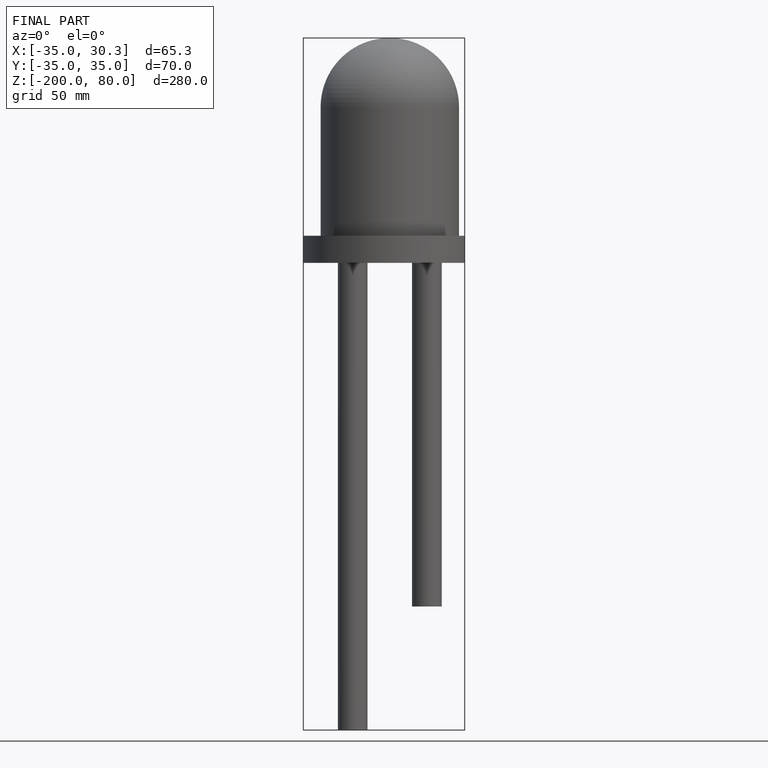
[diagram: finished part — front view with bounding-box wireframe]
